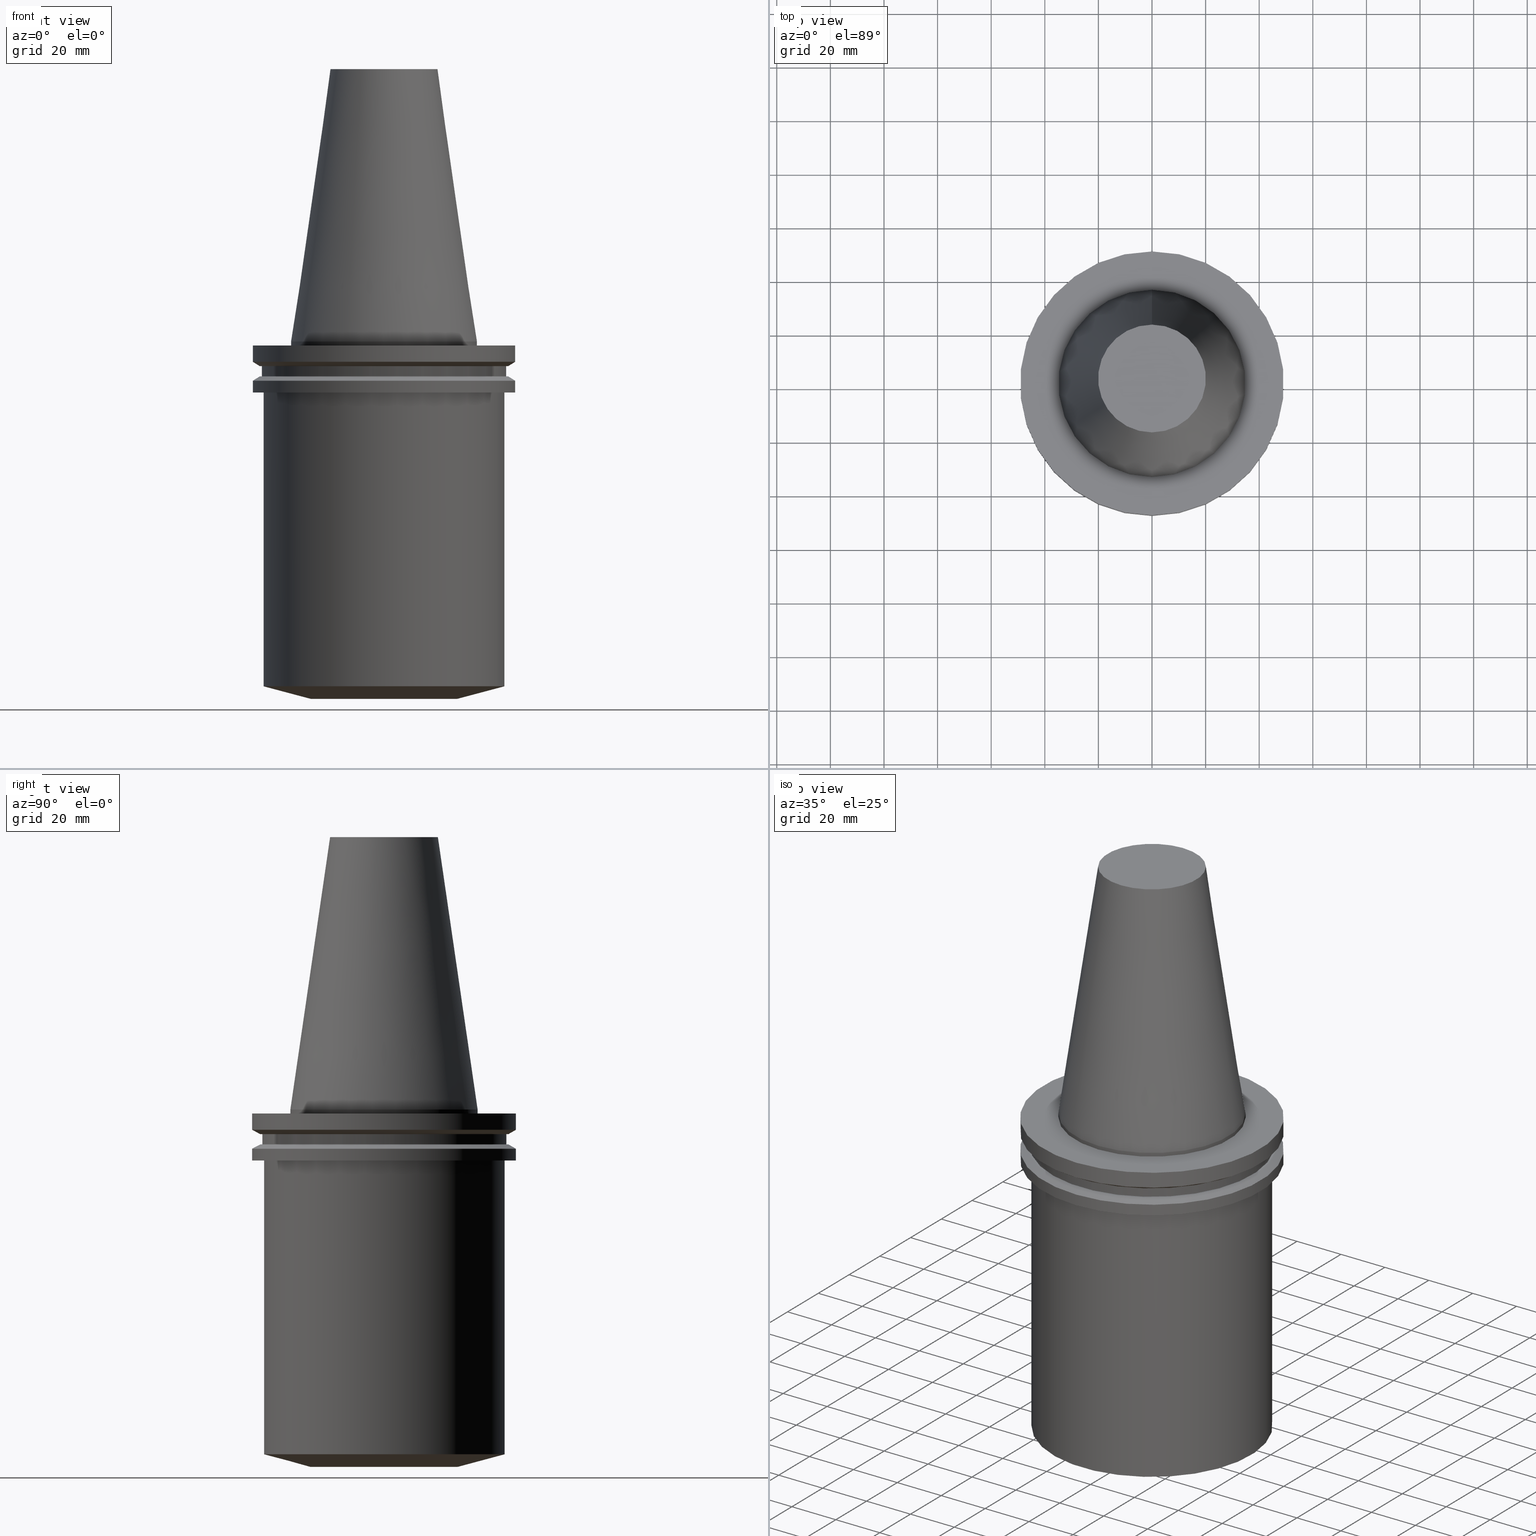
[diagram: canonical four-view strip — front | top / right | iso, engineering-drawing reading convention]
A machine part, canonical four-view strip (front | top / right | iso — engineering-drawing reading convention). The complete STEP part file that produces these views, byte-faithful:
ISO-10303-21;
HEADER;
FILE_DESCRIPTION((''),'1');
FILE_NAME('V:/01_Dxf_Field-HP\X2\FF71FF6FFF8CFF9F5916\X0\2013/BIGKAISER\X2\FF76FF80FF9BFF78FF9E63B28F095206\X0\_BKUS_201803/BCV50Y-BSL/BCV50Y-BSL2.000-5.25.stp','2018-03-13T06:58:04',(''),(''),'Spatial Interop R21 SP3','Kubotek KeyCreator 2011 V10.0.2 (22737)',' ');
FILE_SCHEMA(('automotive_design'));
ENDSEC;
DATA;
#1=MECHANICAL_DESIGN_GEOMETRIC_PRESENTATION_REPRESENTATION(' ',(#10,#11,#12,#13,#14,#15,#16,#17,#18,#19,#20,#21,#22,#23,#24,#25,#26,#27,#28,#29,#30,#31,#32,#33,#34,#35,#36,#37,#38,#39),#6);
#2=PRODUCT_DEFINITION_CONTEXT('',#40,'design');
#3=APPLICATION_PROTOCOL_DEFINITION('INTERNATIONAL STANDARD','automotive_design',1994,#40);
#4=PRODUCT_CATEGORY_RELATIONSHIP('NONE','NONE',#41,#42);
#5=SHAPE_DEFINITION_REPRESENTATION(#43,#44);
#6= (GEOMETRIC_REPRESENTATION_CONTEXT(3)GLOBAL_UNCERTAINTY_ASSIGNED_CONTEXT((#47))GLOBAL_UNIT_ASSIGNED_CONTEXT((#49,#50,#51))REPRESENTATION_CONTEXT('NONE','WORKSPACE'));
#10=STYLED_ITEM('',(#53,#54),#55);
#11=STYLED_ITEM('',(#56,#57),#58);
#12=STYLED_ITEM('',(#59),#60);
#13=STYLED_ITEM('',(#61),#62);
#14=STYLED_ITEM('',(#63),#64);
#15=STYLED_ITEM('',(#65,#66),#67);
#16=STYLED_ITEM('',(#68),#69);
#17=STYLED_ITEM('',(#70),#71);
#18=STYLED_ITEM('',(#72,#73),#74);
#19=STYLED_ITEM('',(#75,#76),#77);
#20=STYLED_ITEM('',(#78,#79),#80);
#21=STYLED_ITEM('',(#81,#82),#83);
#22=STYLED_ITEM('',(#84,#85),#86);
#23=STYLED_ITEM('',(#87,#88),#89);
#24=STYLED_ITEM('',(#90),#91);
#25=STYLED_ITEM('',(#92,#93),#94);
#26=STYLED_ITEM('',(#95),#96);
#27=STYLED_ITEM('',(#97),#98);
#28=STYLED_ITEM('',(#99),#100);
#29=STYLED_ITEM('',(#101,#102),#103);
#30=STYLED_ITEM('',(#104),#105);
#31=STYLED_ITEM('',(#106),#107);
#32=STYLED_ITEM('',(#108),#109);
#33=STYLED_ITEM('',(#110,#111),#112);
#34=STYLED_ITEM('',(#113),#114);
#35=STYLED_ITEM('',(#115,#116),#117);
#36=STYLED_ITEM('',(#118,#119),#120);
#37=STYLED_ITEM('',(#121),#122);
#38=STYLED_ITEM('',(#123,#124),#125);
#39=STYLED_ITEM('',(#126,#127),#128);
#40=APPLICATION_CONTEXT(' ');
#41=PRODUCT_CATEGORY('part','NONE');
#42=PRODUCT_RELATED_PRODUCT_CATEGORY('detail',' ',(#129));
#43=PRODUCT_DEFINITION_SHAPE('NONE','NONE',#130);
#44=ADVANCED_BREP_SHAPE_REPRESENTATION('Unnamed[1]',(#77,#131),#6);
#47=UNCERTAINTY_MEASURE_WITH_UNIT(LENGTH_MEASURE(1.0E-006),#49,'','');
#49= (CONVERSION_BASED_UNIT('MILLIMETRE',#134)LENGTH_UNIT()NAMED_UNIT(#137));
#50= (NAMED_UNIT(#139)PLANE_ANGLE_UNIT()SI_UNIT($,.RADIAN.));
#51= (NAMED_UNIT(#139)SOLID_ANGLE_UNIT()SI_UNIT($,.STERADIAN.));
#53=PRESENTATION_STYLE_ASSIGNMENT((#145));
#54=PRESENTATION_STYLE_ASSIGNMENT((#146));
#55=ADVANCED_FACE('Unnamed[1]',(#147,#148),#149,.T.);
#56=PRESENTATION_STYLE_ASSIGNMENT((#150));
#57=PRESENTATION_STYLE_ASSIGNMENT((#151));
#58=ADVANCED_FACE('Unnamed[1]',(#152,#153),#154,.T.);
#59=PRESENTATION_STYLE_ASSIGNMENT((#155));
#60=EDGE_CURVE('Unnamed[1]',#156,#156,#157,.T.);
#61=PRESENTATION_STYLE_ASSIGNMENT((#158));
#62=EDGE_CURVE('Unnamed[1]',#159,#159,#160,.T.);
#63=PRESENTATION_STYLE_ASSIGNMENT((#161));
#64=EDGE_CURVE('Unnamed[1]',#162,#162,#163,.T.);
#65=PRESENTATION_STYLE_ASSIGNMENT((#164));
#66=PRESENTATION_STYLE_ASSIGNMENT((#165));
#67=ADVANCED_FACE('Unnamed[1]',(#166,#167),#168,.T.);
#68=PRESENTATION_STYLE_ASSIGNMENT((#169));
#69=EDGE_CURVE('Unnamed[1]',#170,#170,#171,.T.);
#70=PRESENTATION_STYLE_ASSIGNMENT((#172));
#71=EDGE_CURVE('Unnamed[1]',#173,#173,#174,.T.);
#72=PRESENTATION_STYLE_ASSIGNMENT((#175));
#73=PRESENTATION_STYLE_ASSIGNMENT((#176));
#74=ADVANCED_FACE('Unnamed[1]',(#177,#178),#179,.T.);
#75=PRESENTATION_STYLE_ASSIGNMENT((#180));
#76=PRESENTATION_STYLE_ASSIGNMENT((#181));
#77=MANIFOLD_SOLID_BREP('Unnamed[1]',#182);
#78=PRESENTATION_STYLE_ASSIGNMENT((#183));
#79=PRESENTATION_STYLE_ASSIGNMENT((#184));
#80=ADVANCED_FACE('Unnamed[1]',(#185),#186,.T.);
#81=PRESENTATION_STYLE_ASSIGNMENT((#187));
#82=PRESENTATION_STYLE_ASSIGNMENT((#188));
#83=ADVANCED_FACE('Unnamed[1]',(#189,#190),#191,.T.);
#84=PRESENTATION_STYLE_ASSIGNMENT((#192));
#85=PRESENTATION_STYLE_ASSIGNMENT((#193));
#86=ADVANCED_FACE('Unnamed[1]',(#194,#195),#196,.T.);
#87=PRESENTATION_STYLE_ASSIGNMENT((#197));
#88=PRESENTATION_STYLE_ASSIGNMENT((#198));
#89=ADVANCED_FACE('Unnamed[1]',(#199),#200,.T.);
#90=PRESENTATION_STYLE_ASSIGNMENT((#201));
#91=EDGE_CURVE('Unnamed[1]',#202,#202,#203,.T.);
#92=PRESENTATION_STYLE_ASSIGNMENT((#204));
#93=PRESENTATION_STYLE_ASSIGNMENT((#205));
#94=ADVANCED_FACE('Unnamed[1]',(#206,#207),#208,.T.);
#95=PRESENTATION_STYLE_ASSIGNMENT((#209));
#96=EDGE_CURVE('Unnamed[1]',#210,#210,#211,.T.);
#97=PRESENTATION_STYLE_ASSIGNMENT((#212));
#98=EDGE_CURVE('Unnamed[1]',#213,#213,#214,.T.);
#99=PRESENTATION_STYLE_ASSIGNMENT((#215));
#100=EDGE_CURVE('Unnamed[1]',#216,#216,#217,.T.);
#101=PRESENTATION_STYLE_ASSIGNMENT((#218));
#102=PRESENTATION_STYLE_ASSIGNMENT((#219));
#103=ADVANCED_FACE('Unnamed[1]',(#220,#221),#222,.T.);
#104=PRESENTATION_STYLE_ASSIGNMENT((#223));
#105=EDGE_CURVE('Unnamed[1]',#224,#224,#225,.T.);
#106=PRESENTATION_STYLE_ASSIGNMENT((#226));
#107=EDGE_CURVE('Unnamed[1]',#227,#227,#228,.T.);
#108=PRESENTATION_STYLE_ASSIGNMENT((#229));
#109=EDGE_CURVE('Unnamed[1]',#230,#230,#231,.T.);
#110=PRESENTATION_STYLE_ASSIGNMENT((#232));
#111=PRESENTATION_STYLE_ASSIGNMENT((#233));
#112=ADVANCED_FACE('Unnamed[1]',(#234,#235),#236,.T.);
#113=PRESENTATION_STYLE_ASSIGNMENT((#237));
#114=EDGE_CURVE('Unnamed[1]',#238,#238,#239,.T.);
#115=PRESENTATION_STYLE_ASSIGNMENT((#240));
#116=PRESENTATION_STYLE_ASSIGNMENT((#241));
#117=ADVANCED_FACE('Unnamed[1]',(#242,#243),#244,.T.);
#118=PRESENTATION_STYLE_ASSIGNMENT((#245));
#119=PRESENTATION_STYLE_ASSIGNMENT((#246));
#120=ADVANCED_FACE('Unnamed[1]',(#247,#248),#249,.T.);
#121=PRESENTATION_STYLE_ASSIGNMENT((#250));
#122=EDGE_CURVE('Unnamed[1]',#251,#251,#252,.T.);
#123=PRESENTATION_STYLE_ASSIGNMENT((#253));
#124=PRESENTATION_STYLE_ASSIGNMENT((#254));
#125=ADVANCED_FACE('Unnamed[1]',(#255,#256),#257,.T.);
#126=PRESENTATION_STYLE_ASSIGNMENT((#258));
#127=PRESENTATION_STYLE_ASSIGNMENT((#259));
#128=ADVANCED_FACE('Unnamed[1]',(#260,#261),#262,.T.);
#129=PRODUCT('Unnamed[1]','Unnamed[1]','PART-Unnamed[1]-DESC',(#263));
#130=PRODUCT_DEFINITION('NONE','NONE',#264,#2);
#131=AXIS2_PLACEMENT_3D('',#265,#266,#267);
#134=LENGTH_MEASURE_WITH_UNIT(LENGTH_MEASURE(1.0),#268);
#137=DIMENSIONAL_EXPONENTS(1.0,0.0,0.0,0.0,0.0,0.0,0.0);
#139=DIMENSIONAL_EXPONENTS(0.0,0.0,0.0,0.0,0.0,0.0,0.0);
#145=SURFACE_STYLE_USAGE(.BOTH.,#269);
#146=CURVE_STYLE('',#270,POSITIVE_LENGTH_MEASURE(1000.0),#271);
#147=FACE_BOUND('',#272,.T.);
#148=FACE_BOUND('',#273,.T.);
#149=CONICAL_SURFACE('',#274,47.821518775,1.04719755103024);
#150=SURFACE_STYLE_USAGE(.BOTH.,#275);
#151=CURVE_STYLE('',#276,POSITIVE_LENGTH_MEASURE(1000.0),#277);
#152=FACE_BOUND('',#278,.T.);
#153=FACE_BOUND('',#279,.T.);
#154=CONICAL_SURFACE('',#280,47.821518775,1.04719755103023);
#155=CURVE_STYLE('',#281,POSITIVE_LENGTH_MEASURE(1000.0),#282);
#156=VERTEX_POINT('',#283);
#157=CIRCLE('',#284,45.645);
#158=CURVE_STYLE('',#285,POSITIVE_LENGTH_MEASURE(1000.0),#286);
#159=VERTEX_POINT('',#287);
#160=CIRCLE('',#288,20.1083333297217);
#161=CURVE_STYLE('',#289,POSITIVE_LENGTH_MEASURE(1000.0),#290);
#162=VERTEX_POINT('',#291);
#163=CIRCLE('',#292,49.2125);
#164=SURFACE_STYLE_USAGE(.BOTH.,#293);
#165=CURVE_STYLE('',#294,POSITIVE_LENGTH_MEASURE(1000.0),#295);
#166=FACE_BOUND('',#296,.T.);
#167=FACE_BOUND('',#297,.T.);
#168=CONICAL_SURFACE('',#298,27.5166666648609,0.144812498273746);
#169=CURVE_STYLE('',#299,POSITIVE_LENGTH_MEASURE(1000.0),#300);
#170=VERTEX_POINT('',#301);
#171=CIRCLE('',#302,34.925);
#172=CURVE_STYLE('',#303,POSITIVE_LENGTH_MEASURE(1000.0),#304);
#173=VERTEX_POINT('',#305);
#174=CIRCLE('',#306,44.9999999999901);
#175=SURFACE_STYLE_USAGE(.BOTH.,#307);
#176=CURVE_STYLE('',#308,POSITIVE_LENGTH_MEASURE(1000.0),#309);
#177=FACE_OUTER_BOUND('',#310,.T.);
#178=FACE_BOUND('',#311,.T.);
#179=PLANE('',#312);
#180=SURFACE_STYLE_USAGE(.BOTH.,#313);
#181=CURVE_STYLE('',#314,POSITIVE_LENGTH_MEASURE(1000.0),#315);
#182=CLOSED_SHELL('',(#80,#67,#125,#74,#117,#55,#120,#103,#128,#58,#83,#86,#112,#94,#89));
#183=SURFACE_STYLE_USAGE(.BOTH.,#316);
#184=CURVE_STYLE('',#317,POSITIVE_LENGTH_MEASURE(1000.0),#318);
#185=FACE_OUTER_BOUND('',#319,.T.);
#186=PLANE('',#320);
#187=SURFACE_STYLE_USAGE(.BOTH.,#321);
#188=CURVE_STYLE('',#322,POSITIVE_LENGTH_MEASURE(1000.0),#323);
#189=FACE_BOUND('',#324,.T.);
#190=FACE_BOUND('',#325,.T.);
#191=CYLINDRICAL_SURFACE('',#326,49.2125);
#192=SURFACE_STYLE_USAGE(.BOTH.,#327);
#193=CURVE_STYLE('',#328,POSITIVE_LENGTH_MEASURE(1000.0),#329);
#194=FACE_BOUND('',#330,.T.);
#195=FACE_OUTER_BOUND('',#331,.T.);
#196=PLANE('',#332);
#197=SURFACE_STYLE_USAGE(.BOTH.,#333);
#198=CURVE_STYLE('',#334,POSITIVE_LENGTH_MEASURE(1000.0),#335);
#199=FACE_OUTER_BOUND('',#336,.T.);
#200=PLANE('',#337);
#201=CURVE_STYLE('',#338,POSITIVE_LENGTH_MEASURE(1000.0),#339);
#202=VERTEX_POINT('',#340);
#203=CIRCLE('',#341,46.43053755);
#204=SURFACE_STYLE_USAGE(.BOTH.,#342);
#205=CURVE_STYLE('',#343,POSITIVE_LENGTH_MEASURE(1000.0),#344);
#206=FACE_BOUND('',#345,.T.);
#207=FACE_BOUND('',#346,.T.);
#208=CONICAL_SURFACE('',#347,36.2500000000041,1.30899693899581);
#209=CURVE_STYLE('',#348,POSITIVE_LENGTH_MEASURE(1000.0),#349);
#210=VERTEX_POINT('',#350);
#211=CIRCLE('',#351,49.2125);
#212=CURVE_STYLE('',#352,POSITIVE_LENGTH_MEASURE(1000.0),#353);
#213=VERTEX_POINT('',#354);
#214=CIRCLE('',#355,44.9999999999985);
#215=CURVE_STYLE('',#356,POSITIVE_LENGTH_MEASURE(1000.0),#357);
#216=VERTEX_POINT('',#358);
#217=CIRCLE('',#359,27.500000000018);
#218=SURFACE_STYLE_USAGE(.BOTH.,#360);
#219=CURVE_STYLE('',#361,POSITIVE_LENGTH_MEASURE(1000.0),#362);
#220=FACE_BOUND('',#363,.T.);
#221=FACE_BOUND('',#364,.T.);
#222=CYLINDRICAL_SURFACE('',#365,45.645);
#223=CURVE_STYLE('',#366,POSITIVE_LENGTH_MEASURE(1000.0),#367);
#224=VERTEX_POINT('',#368);
#225=CIRCLE('',#369,34.925);
#226=CURVE_STYLE('',#370,POSITIVE_LENGTH_MEASURE(1000.0),#371);
#227=VERTEX_POINT('',#372);
#228=CIRCLE('',#373,46.43053755);
#229=CURVE_STYLE('',#374,POSITIVE_LENGTH_MEASURE(1000.0),#375);
#230=VERTEX_POINT('',#376);
#231=CIRCLE('',#377,49.2125);
#232=SURFACE_STYLE_USAGE(.BOTH.,#378);
#233=CURVE_STYLE('',#379,POSITIVE_LENGTH_MEASURE(1000.0),#380);
#234=FACE_BOUND('',#381,.T.);
#235=FACE_BOUND('',#382,.T.);
#236=CYLINDRICAL_SURFACE('',#383,44.9999999999943);
#237=CURVE_STYLE('',#384,POSITIVE_LENGTH_MEASURE(1000.0),#385);
#238=VERTEX_POINT('',#386);
#239=CIRCLE('',#387,49.2125);
#240=SURFACE_STYLE_USAGE(.BOTH.,#388);
#241=CURVE_STYLE('',#389,POSITIVE_LENGTH_MEASURE(1000.0),#390);
#242=FACE_BOUND('',#391,.T.);
#243=FACE_BOUND('',#392,.T.);
#244=CYLINDRICAL_SURFACE('',#393,49.2125);
#245=SURFACE_STYLE_USAGE(.BOTH.,#394);
#246=CURVE_STYLE('',#395,POSITIVE_LENGTH_MEASURE(1000.0),#396);
#247=FACE_BOUND('',#397,.T.);
#248=FACE_OUTER_BOUND('',#398,.T.);
#249=PLANE('',#399);
#250=CURVE_STYLE('',#400,POSITIVE_LENGTH_MEASURE(1000.0),#401);
#251=VERTEX_POINT('',#402);
#252=CIRCLE('',#403,45.645);
#253=SURFACE_STYLE_USAGE(.BOTH.,#404);
#254=CURVE_STYLE('',#405,POSITIVE_LENGTH_MEASURE(1000.0),#406);
#255=FACE_BOUND('',#407,.T.);
#256=FACE_BOUND('',#408,.T.);
#257=CYLINDRICAL_SURFACE('',#409,34.925);
#258=SURFACE_STYLE_USAGE(.BOTH.,#410);
#259=CURVE_STYLE('',#411,POSITIVE_LENGTH_MEASURE(1000.0),#412);
#260=FACE_OUTER_BOUND('',#413,.T.);
#261=FACE_BOUND('',#414,.T.);
#262=PLANE('',#415);
#263=PRODUCT_CONTEXT('',#40,'mechanical');
#264=PRODUCT_DEFINITION_FORMATION_WITH_SPECIFIED_SOURCE(' ','NONE',#129,.NOT_KNOWN.);
#265=CARTESIAN_POINT('',(0.0,0.0,0.0));
#266=DIRECTION('',(0.0,0.0,1.0));
#267=DIRECTION('',(1.0,0.0,0.0));
#268= (NAMED_UNIT(#137)LENGTH_UNIT()SI_UNIT(.MILLI.,.METRE.));
#269=SURFACE_SIDE_STYLE('',(#417));
#270=DRAUGHTING_PRE_DEFINED_CURVE_FONT('continuous');
#271=COLOUR_RGB('',0.0,1.0,0.0);
#272=EDGE_LOOP('',(#418));
#273=EDGE_LOOP('',(#419));
#274=AXIS2_PLACEMENT_3D('',#420,#421,#422);
#275=SURFACE_SIDE_STYLE('',(#423));
#276=DRAUGHTING_PRE_DEFINED_CURVE_FONT('continuous');
#277=COLOUR_RGB('',0.0,1.0,0.0);
#278=EDGE_LOOP('',(#424));
#279=EDGE_LOOP('',(#425));
#280=AXIS2_PLACEMENT_3D('',#426,#427,#428);
#281=DRAUGHTING_PRE_DEFINED_CURVE_FONT('continuous');
#282=COLOUR_RGB('',0.0,1.0,0.0);
#283=CARTESIAN_POINT('',(5.63337527607782E-016,45.645,-9.2));
#284=AXIS2_PLACEMENT_3D('',#429,#430,#431);
#285=DRAUGHTING_PRE_DEFINED_CURVE_FONT('continuous');
#286=COLOUR_RGB('',0.0,1.0,0.0);
#287=CARTESIAN_POINT('',(-6.22120573966855E-015,20.1083333297217,101.6));
#288=AXIS2_PLACEMENT_3D('',#432,#433,#434);
#289=DRAUGHTING_PRE_DEFINED_CURVE_FONT('continuous');
#290=COLOUR_RGB('',0.0,1.0,0.0);
#291=CARTESIAN_POINT('',(9.18485099360509E-017,49.2125,-1.49999999999999));
#292=AXIS2_PLACEMENT_3D('',#435,#436,#437);
#293=SURFACE_SIDE_STYLE('',(#438));
#294=DRAUGHTING_PRE_DEFINED_CURVE_FONT('continuous');
#295=COLOUR_RGB('',0.0,1.0,0.0);
#296=EDGE_LOOP('',(#439));
#297=EDGE_LOOP('',(#440));
#298=AXIS2_PLACEMENT_3D('',#441,#442,#443);
#299=DRAUGHTING_PRE_DEFINED_CURVE_FONT('continuous');
#300=COLOUR_RGB('',0.0,1.0,0.0);
#301=CARTESIAN_POINT('',(-4.30483861169435E-031,34.925,4.27707894602213E-015));
#302=AXIS2_PLACEMENT_3D('',#444,#445,#446);
#303=DRAUGHTING_PRE_DEFINED_CURVE_FONT('continuous');
#304=COLOUR_RGB('',0.0,1.0,0.0);
#305=CARTESIAN_POINT('',(7.87820730257622E-015,44.9999999999901,-128.660889132464));
#306=AXIS2_PLACEMENT_3D('',#447,#448,#449);
#307=SURFACE_SIDE_STYLE('',(#450));
#308=DRAUGHTING_PRE_DEFINED_CURVE_FONT('continuous');
#309=COLOUR_RGB('',0.0,1.0,0.0);
#310=EDGE_LOOP('',(#451));
#311=EDGE_LOOP('',(#452));
#312=AXIS2_PLACEMENT_3D('',#453,#454,#455);
#313=SURFACE_SIDE_STYLE('',(#456));
#314=DRAUGHTING_PRE_DEFINED_CURVE_FONT('continuous');
#315=COLOUR_RGB('',0.0,1.0,0.0);
#316=SURFACE_SIDE_STYLE('',(#457));
#317=DRAUGHTING_PRE_DEFINED_CURVE_FONT('continuous');
#318=COLOUR_RGB('',0.0,1.0,0.0);
#319=EDGE_LOOP('',(#458));
#320=AXIS2_PLACEMENT_3D('',#459,#460,#461);
#321=SURFACE_SIDE_STYLE('',(#462));
#322=DRAUGHTING_PRE_DEFINED_CURVE_FONT('continuous');
#323=COLOUR_RGB('',0.0,1.0,0.0);
#324=EDGE_LOOP('',(#463));
#325=EDGE_LOOP('',(#464));
#326=AXIS2_PLACEMENT_3D('',#465,#466,#467);
#327=SURFACE_SIDE_STYLE('',(#468));
#328=DRAUGHTING_PRE_DEFINED_CURVE_FONT('continuous');
#329=COLOUR_RGB('',0.0,1.0,0.0);
#330=EDGE_LOOP('',(#469));
#331=EDGE_LOOP('',(#470));
#332=AXIS2_PLACEMENT_3D('',#471,#472,#473);
#333=SURFACE_SIDE_STYLE('',(#474));
#334=DRAUGHTING_PRE_DEFINED_CURVE_FONT('continuous');
#335=COLOUR_RGB('',0.0,1.0,0.0);
#336=EDGE_LOOP('',(#475));
#337=AXIS2_PLACEMENT_3D('',#476,#477,#478);
#338=DRAUGHTING_PRE_DEFINED_CURVE_FONT('continuous');
#339=COLOUR_RGB('',0.0,1.0,0.0);
#340=CARTESIAN_POINT('',(5.63337527607782E-016,46.43053755,-9.2));
#341=AXIS2_PLACEMENT_3D('',#479,#480,#481);
#342=SURFACE_SIDE_STYLE('',(#482));
#343=DRAUGHTING_PRE_DEFINED_CURVE_FONT('continuous');
#344=COLOUR_RGB('',0.0,1.0,0.0);
#345=EDGE_LOOP('',(#483));
#346=EDGE_LOOP('',(#484));
#347=AXIS2_PLACEMENT_3D('',#485,#486,#487);
#348=DRAUGHTING_PRE_DEFINED_CURVE_FONT('continuous');
#349=COLOUR_RGB('',0.0,1.0,0.0);
#350=CARTESIAN_POINT('',(8.96819062732941E-016,49.2125,-14.64616677));
#351=AXIS2_PLACEMENT_3D('',#488,#489,#490);
#352=DRAUGHTING_PRE_DEFINED_CURVE_FONT('continuous');
#353=COLOUR_RGB('',0.0,1.0,0.0);
#354=CARTESIAN_POINT('',(1.16647607618786E-015,44.9999999999985,-19.05));
#355=AXIS2_PLACEMENT_3D('',#491,#492,#493);
#356=DRAUGHTING_PRE_DEFINED_CURVE_FONT('continuous');
#357=COLOUR_RGB('',0.0,1.0,0.0);
#358=CARTESIAN_POINT('',(8.16533253331496E-015,27.500000000018,-133.35));
#359=AXIS2_PLACEMENT_3D('',#494,#495,#496);
#360=SURFACE_SIDE_STYLE('',(#497));
#361=DRAUGHTING_PRE_DEFINED_CURVE_FONT('continuous');
#362=COLOUR_RGB('',0.0,1.0,0.0);
#363=EDGE_LOOP('',(#498));
#364=EDGE_LOOP('',(#499));
#365=AXIS2_PLACEMENT_3D('',#500,#501,#502);
#366=DRAUGHTING_PRE_DEFINED_CURVE_FONT('continuous');
#367=COLOUR_RGB('',0.0,1.0,0.0);
#368=CARTESIAN_POINT('',(9.18485099360511E-017,34.925,-1.5));
#369=AXIS2_PLACEMENT_3D('',#503,#504,#505);
#370=DRAUGHTING_PRE_DEFINED_CURVE_FONT('continuous');
#371=COLOUR_RGB('',0.0,1.0,0.0);
#372=CARTESIAN_POINT('',(7.98469713044073E-016,46.43053755,-13.04));
#373=AXIS2_PLACEMENT_3D('',#506,#507,#508);
#374=DRAUGHTING_PRE_DEFINED_CURVE_FONT('continuous');
#375=COLOUR_RGB('',0.0,1.0,0.0);
#376=CARTESIAN_POINT('',(1.16647607618785E-015,49.2125,-19.05));
#377=AXIS2_PLACEMENT_3D('',#509,#510,#511);
#378=SURFACE_SIDE_STYLE('',(#512));
#379=DRAUGHTING_PRE_DEFINED_CURVE_FONT('continuous');
#380=COLOUR_RGB('',0.0,1.0,0.0);
#381=EDGE_LOOP('',(#513));
#382=EDGE_LOOP('',(#514));
#383=AXIS2_PLACEMENT_3D('',#515,#516,#517);
#384=DRAUGHTING_PRE_DEFINED_CURVE_FONT('continuous');
#385=COLOUR_RGB('',0.0,1.0,0.0);
#386=CARTESIAN_POINT('',(4.64988177918915E-016,49.2125,-7.59383323));
#387=AXIS2_PLACEMENT_3D('',#518,#519,#520);
#388=SURFACE_SIDE_STYLE('',(#521));
#389=DRAUGHTING_PRE_DEFINED_CURVE_FONT('continuous');
#390=COLOUR_RGB('',0.0,1.0,0.0);
#391=EDGE_LOOP('',(#522));
#392=EDGE_LOOP('',(#523));
#393=AXIS2_PLACEMENT_3D('',#524,#525,#526);
#394=SURFACE_SIDE_STYLE('',(#527));
#395=DRAUGHTING_PRE_DEFINED_CURVE_FONT('continuous');
#396=COLOUR_RGB('',0.0,1.0,0.0);
#397=EDGE_LOOP('',(#528));
#398=EDGE_LOOP('',(#529));
#399=AXIS2_PLACEMENT_3D('',#530,#531,#532);
#400=DRAUGHTING_PRE_DEFINED_CURVE_FONT('continuous');
#401=COLOUR_RGB('',0.0,1.0,0.0);
#402=CARTESIAN_POINT('',(7.98469713044073E-016,45.645,-13.04));
#403=AXIS2_PLACEMENT_3D('',#533,#534,#535);
#404=SURFACE_SIDE_STYLE('',(#536));
#405=DRAUGHTING_PRE_DEFINED_CURVE_FONT('continuous');
#406=COLOUR_RGB('',0.0,1.0,0.0);
#407=EDGE_LOOP('',(#537));
#408=EDGE_LOOP('',(#538));
#409=AXIS2_PLACEMENT_3D('',#539,#540,#541);
#410=SURFACE_SIDE_STYLE('',(#542));
#411=DRAUGHTING_PRE_DEFINED_CURVE_FONT('continuous');
#412=COLOUR_RGB('',0.0,1.0,0.0);
#413=EDGE_LOOP('',(#543));
#414=EDGE_LOOP('',(#544));
#415=AXIS2_PLACEMENT_3D('',#545,#546,#547);
#417=SURFACE_STYLE_FILL_AREA(#548);
#418=ORIENTED_EDGE('',*,*,#91,.F.);
#419=ORIENTED_EDGE('',*,*,#114,.T.);
#420=CARTESIAN_POINT('',(5.14162852763349E-016,1.0283257055267E-015,-8.39691661500001));
#421=DIRECTION('',(-6.12323399573677E-017,-1.22464679914735E-016,1.0));
#422=DIRECTION('',(-1.23259516440783E-032,1.0,1.22464679914735E-016));
#423=SURFACE_STYLE_FILL_AREA(#549);
#424=ORIENTED_EDGE('',*,*,#96,.F.);
#425=ORIENTED_EDGE('',*,*,#107,.T.);
#426=CARTESIAN_POINT('',(8.47644387888508E-016,1.69528877577702E-015,-13.843083385));
#427=DIRECTION('',(6.12323399573677E-017,1.22464679914735E-016,-1.0));
#428=DIRECTION('',(-1.23259516440783E-032,1.0,1.22464679914735E-016));
#429=CARTESIAN_POINT('',(5.63337527607783E-016,1.12667505521557E-015,-9.2));
#430=DIRECTION('',(6.12323399573677E-017,1.22464679914735E-016,-1.0));
#431=DIRECTION('',(-1.23259516440783E-032,1.0,1.22464679914735E-016));
#432=CARTESIAN_POINT('',(-6.22120573966855E-015,-1.24424114793371E-014,101.6));
#433=DIRECTION('',(6.12323399573676E-017,1.22464679914735E-016,-1.0));
#434=DIRECTION('',(-1.23259516440783E-032,1.0,1.22464679914735E-016));
#435=CARTESIAN_POINT('',(9.18485099360515E-017,1.83697019872103E-016,-1.5));
#436=DIRECTION('',(6.12323399573677E-017,1.22464679914735E-016,-1.0));
#437=DIRECTION('',(-1.23259516440783E-032,1.0,1.22464679914735E-016));
#438=SURFACE_STYLE_FILL_AREA(#550);
#439=ORIENTED_EDGE('',*,*,#69,.F.);
#440=ORIENTED_EDGE('',*,*,#62,.T.);
#441=CARTESIAN_POINT('',(-3.11060286983428E-015,-6.22120573966855E-015,50.8));
#442=DIRECTION('',(6.12323399573677E-017,1.22464679914735E-016,-1.0));
#443=DIRECTION('',(-1.23259516440783E-032,1.0,1.22464679914735E-016));
#444=CARTESIAN_POINT('',(0.0,0.0,0.0));
#445=DIRECTION('',(6.12323399573677E-017,1.22464679914735E-016,-1.0));
#446=DIRECTION('',(-1.23259516440783E-032,1.0,1.22464679914735E-016));
#447=CARTESIAN_POINT('',(7.87820730257622E-015,1.57564146051524E-014,-128.660889132464));
#448=DIRECTION('',(6.12323399573676E-017,1.22464679914735E-016,-1.0));
#449=DIRECTION('',(-1.23259516440783E-032,1.0,1.22464679914735E-016));
#450=SURFACE_STYLE_FILL_AREA(#551);
#451=ORIENTED_EDGE('',*,*,#64,.F.);
#452=ORIENTED_EDGE('',*,*,#105,.T.);
#453=CARTESIAN_POINT('',(9.1848509936051E-017,42.06875,-1.49999999999999));
#454=DIRECTION('',(-6.12323399573677E-017,-1.22464679914735E-016,1.0));
#455=DIRECTION('',(1.23259516440783E-032,-1.0,-1.22464679914735E-016));
#456=SURFACE_STYLE_FILL_AREA(#552);
#457=SURFACE_STYLE_FILL_AREA(#553);
#458=ORIENTED_EDGE('',*,*,#62,.F.);
#459=CARTESIAN_POINT('',(-6.22120573966855E-015,10.0541666648608,101.6));
#460=DIRECTION('',(-6.12323399573677E-017,-1.22464679914735E-016,1.0));
#461=DIRECTION('',(1.23259516440783E-032,-1.0,-1.22464679914735E-016));
#462=SURFACE_STYLE_FILL_AREA(#554);
#463=ORIENTED_EDGE('',*,*,#109,.F.);
#464=ORIENTED_EDGE('',*,*,#96,.T.);
#465=CARTESIAN_POINT('',(1.0316475694604E-015,2.0632951389208E-015,-16.848083385));
#466=DIRECTION('',(6.12323399573677E-017,1.22464679914735E-016,-1.0));
#467=DIRECTION('',(-1.23259516440783E-032,1.0,1.22464679914735E-016));
#468=SURFACE_STYLE_FILL_AREA(#555);
#469=ORIENTED_EDGE('',*,*,#98,.F.);
#470=ORIENTED_EDGE('',*,*,#109,.T.);
#471=CARTESIAN_POINT('',(1.16647607618785E-015,47.1062499999992,-19.05));
#472=DIRECTION('',(6.12323399573677E-017,6.02608384943278E-015,-1.0));
#473=DIRECTION('',(-3.7381836761084E-031,1.0,6.02608384943278E-015));
#474=SURFACE_STYLE_FILL_AREA(#556);
#475=ORIENTED_EDGE('',*,*,#100,.T.);
#476=CARTESIAN_POINT('',(8.16533253331497E-015,13.750000000009,-133.35));
#477=DIRECTION('',(6.12323399573677E-017,2.18949809303367E-015,-1.0));
#478=DIRECTION('',(-1.38895244299415E-031,1.0,2.18949809303367E-015));
#479=CARTESIAN_POINT('',(5.63337527607783E-016,1.12667505521557E-015,-9.2));
#480=DIRECTION('',(6.12323399573677E-017,1.22464679914735E-016,-1.0));
#481=DIRECTION('',(-1.23259516440783E-032,1.0,1.22464679914735E-016));
#482=SURFACE_STYLE_FILL_AREA(#557);
#483=ORIENTED_EDGE('',*,*,#100,.F.);
#484=ORIENTED_EDGE('',*,*,#71,.T.);
#485=CARTESIAN_POINT('',(8.02176991794559E-015,1.60435398358912E-014,-131.005444566232));
#486=DIRECTION('',(-6.12323399573677E-017,-1.22464679914735E-016,1.0));
#487=DIRECTION('',(-1.23259516440783E-032,1.0,1.22464679914735E-016));
#488=CARTESIAN_POINT('',(8.96819062732942E-016,1.79363812546588E-015,-14.64616677));
#489=DIRECTION('',(6.12323399573677E-017,1.22464679914735E-016,-1.0));
#490=DIRECTION('',(-1.23259516440783E-032,1.0,1.22464679914735E-016));
#491=CARTESIAN_POINT('',(1.16647607618786E-015,2.33295215237571E-015,-19.05));
#492=DIRECTION('',(6.12323399573677E-017,1.22464679914735E-016,-1.0));
#493=DIRECTION('',(-1.23259516440783E-032,1.0,1.22464679914735E-016));
#494=CARTESIAN_POINT('',(8.16533253331496E-015,1.63306650666299E-014,-133.35));
#495=DIRECTION('',(6.12323399573677E-017,1.22464679914735E-016,-1.0));
#496=DIRECTION('',(-1.23259516440783E-032,1.0,1.22464679914735E-016));
#497=SURFACE_STYLE_FILL_AREA(#558);
#498=ORIENTED_EDGE('',*,*,#122,.F.);
#499=ORIENTED_EDGE('',*,*,#60,.T.);
#500=CARTESIAN_POINT('',(6.80903620325929E-016,1.36180724065186E-015,-11.12));
#501=DIRECTION('',(6.12323399573677E-017,1.22464679914735E-016,-1.0));
#502=DIRECTION('',(-1.23259516440783E-032,1.0,1.22464679914735E-016));
#503=CARTESIAN_POINT('',(9.18485099360515E-017,1.83697019872103E-016,-1.5));
#504=DIRECTION('',(6.12323399573677E-017,1.22464679914735E-016,-1.0));
#505=DIRECTION('',(-1.23259516440783E-032,1.0,1.22464679914735E-016));
#506=CARTESIAN_POINT('',(7.98469713044074E-016,1.59693942608815E-015,-13.04));
#507=DIRECTION('',(6.12323399573677E-017,1.22464679914735E-016,-1.0));
#508=DIRECTION('',(-1.23259516440783E-032,1.0,1.22464679914735E-016));
#509=CARTESIAN_POINT('',(1.16647607618785E-015,2.33295215237571E-015,-19.05));
#510=DIRECTION('',(6.12323399573677E-017,1.22464679914735E-016,-1.0));
#511=DIRECTION('',(-1.23259516440783E-032,1.0,1.22464679914735E-016));
#512=SURFACE_STYLE_FILL_AREA(#559);
#513=ORIENTED_EDGE('',*,*,#71,.F.);
#514=ORIENTED_EDGE('',*,*,#98,.T.);
#515=CARTESIAN_POINT('',(4.52234168938204E-015,9.04468337876407E-015,-73.855444566232));
#516=DIRECTION('',(6.12323399573677E-017,1.22464679914735E-016,-1.0));
#517=DIRECTION('',(-1.23259516440783E-032,1.0,1.22464679914735E-016));
#518=CARTESIAN_POINT('',(4.64988177918915E-016,9.29976355837831E-016,-7.59383323));
#519=DIRECTION('',(6.12323399573677E-017,1.22464679914735E-016,-1.0));
#520=DIRECTION('',(-1.23259516440783E-032,1.0,1.22464679914735E-016));
#521=SURFACE_STYLE_FILL_AREA(#560);
#522=ORIENTED_EDGE('',*,*,#114,.F.);
#523=ORIENTED_EDGE('',*,*,#64,.T.);
#524=CARTESIAN_POINT('',(2.78418343927483E-016,5.56836687854965E-016,-4.54691661499999));
#525=DIRECTION('',(6.12323399573677E-017,1.22464679914735E-016,-1.0));
#526=DIRECTION('',(-1.23259516440783E-032,1.0,1.22464679914735E-016));
#527=SURFACE_STYLE_FILL_AREA(#561);
#528=ORIENTED_EDGE('',*,*,#60,.F.);
#529=ORIENTED_EDGE('',*,*,#91,.T.);
#530=CARTESIAN_POINT('',(5.63337527607782E-016,46.037768775,-9.2));
#531=DIRECTION('',(6.12323399573677E-017,1.22464679914735E-016,-1.0));
#532=DIRECTION('',(-1.23259516440783E-032,1.0,1.22464679914735E-016));
#533=CARTESIAN_POINT('',(7.98469713044074E-016,1.59693942608815E-015,-13.04));
#534=DIRECTION('',(6.12323399573677E-017,1.22464679914735E-016,-1.0));
#535=DIRECTION('',(-1.23259516440783E-032,1.0,1.22464679914735E-016));
#536=SURFACE_STYLE_FILL_AREA(#562);
#537=ORIENTED_EDGE('',*,*,#105,.F.);
#538=ORIENTED_EDGE('',*,*,#69,.T.);
#539=CARTESIAN_POINT('',(4.59242549680257E-017,9.18485099360515E-017,-0.75));
#540=DIRECTION('',(6.12323399573677E-017,1.22464679914735E-016,-1.0));
#541=DIRECTION('',(-1.23259516440783E-032,1.0,1.22464679914735E-016));
#542=SURFACE_STYLE_FILL_AREA(#563);
#543=ORIENTED_EDGE('',*,*,#107,.F.);
#544=ORIENTED_EDGE('',*,*,#122,.T.);
#545=CARTESIAN_POINT('',(7.98469713044073E-016,46.037768775,-13.04));
#546=DIRECTION('',(-6.12323399573677E-017,-1.22464679914735E-016,1.0));
#547=DIRECTION('',(1.23259516440783E-032,-1.0,-1.22464679914735E-016));
#548=FILL_AREA_STYLE('',(#564));
#549=FILL_AREA_STYLE('',(#565));
#550=FILL_AREA_STYLE('',(#566));
#551=FILL_AREA_STYLE('',(#567));
#552=FILL_AREA_STYLE('',(#568));
#553=FILL_AREA_STYLE('',(#569));
#554=FILL_AREA_STYLE('',(#570));
#555=FILL_AREA_STYLE('',(#571));
#556=FILL_AREA_STYLE('',(#572));
#557=FILL_AREA_STYLE('',(#573));
#558=FILL_AREA_STYLE('',(#574));
#559=FILL_AREA_STYLE('',(#575));
#560=FILL_AREA_STYLE('',(#576));
#561=FILL_AREA_STYLE('',(#577));
#562=FILL_AREA_STYLE('',(#578));
#563=FILL_AREA_STYLE('',(#579));
#564=FILL_AREA_STYLE_COLOUR('',#580);
#565=FILL_AREA_STYLE_COLOUR('',#581);
#566=FILL_AREA_STYLE_COLOUR('',#582);
#567=FILL_AREA_STYLE_COLOUR('',#583);
#568=FILL_AREA_STYLE_COLOUR('',#584);
#569=FILL_AREA_STYLE_COLOUR('',#585);
#570=FILL_AREA_STYLE_COLOUR('',#586);
#571=FILL_AREA_STYLE_COLOUR('',#587);
#572=FILL_AREA_STYLE_COLOUR('',#588);
#573=FILL_AREA_STYLE_COLOUR('',#589);
#574=FILL_AREA_STYLE_COLOUR('',#590);
#575=FILL_AREA_STYLE_COLOUR('',#591);
#576=FILL_AREA_STYLE_COLOUR('',#592);
#577=FILL_AREA_STYLE_COLOUR('',#593);
#578=FILL_AREA_STYLE_COLOUR('',#594);
#579=FILL_AREA_STYLE_COLOUR('',#595);
#580=COLOUR_RGB('',0.0,1.0,0.0);
#581=COLOUR_RGB('',0.0,1.0,0.0);
#582=COLOUR_RGB('',0.0,1.0,0.0);
#583=COLOUR_RGB('',0.0,1.0,0.0);
#584=COLOUR_RGB('',0.0,1.0,0.0);
#585=COLOUR_RGB('',0.0,1.0,0.0);
#586=COLOUR_RGB('',0.0,1.0,0.0);
#587=COLOUR_RGB('',0.0,1.0,0.0);
#588=COLOUR_RGB('',0.0,1.0,0.0);
#589=COLOUR_RGB('',0.0,1.0,0.0);
#590=COLOUR_RGB('',0.0,1.0,0.0);
#591=COLOUR_RGB('',0.0,1.0,0.0);
#592=COLOUR_RGB('',0.0,1.0,0.0);
#593=COLOUR_RGB('',0.0,1.0,0.0);
#594=COLOUR_RGB('',0.0,1.0,0.0);
#595=COLOUR_RGB('',0.0,1.0,0.0);
ENDSEC;
END-ISO-10303-21;
